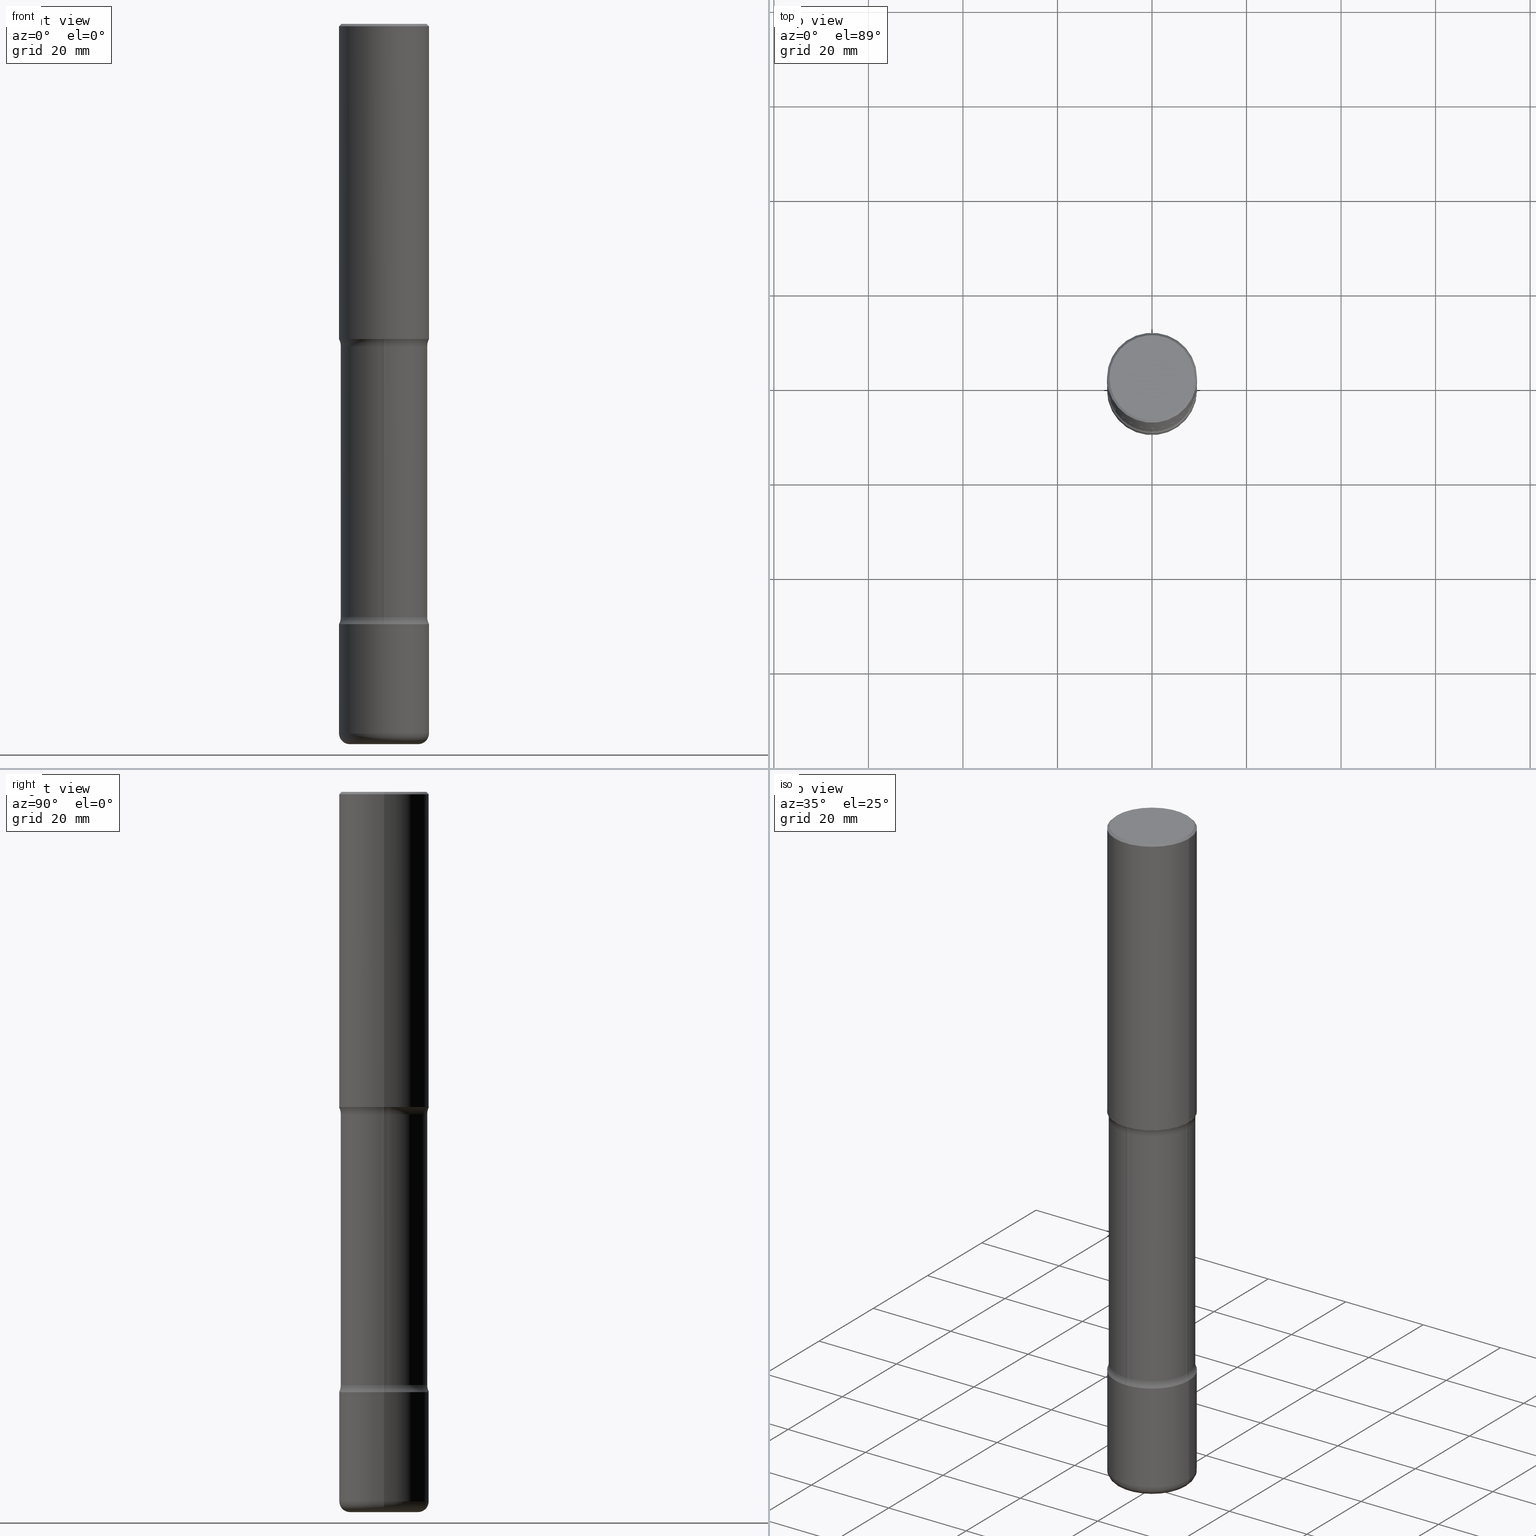
[diagram: canonical four-view strip — front | top / right | iso, engineering-drawing reading convention]
A machine part, canonical four-view strip (front | top / right | iso — engineering-drawing reading convention). The complete STEP part file that produces these views, byte-faithful:
ISO-10303-21;
HEADER;
FILE_DESCRIPTION (( 'STEP AP203' ),
    '1' );
FILE_NAME ('32801.STEP',
    '2023-03-11T07:02:49',
    ( '' ),
    ( '' ),
    'SwSTEP 2.0',
    'SolidWorks 2022',
    '' );
FILE_SCHEMA (( 'CONFIG_CONTROL_DESIGN' ));
ENDSEC;

DATA;
#1 = EDGE_CURVE ( 'NONE', #806, #16, #293, .T. ) ;
#2 = TOROIDAL_SURFACE ( 'NONE', #100, 0.4849999999999996536, 0.1249999999999999306 ) ;
#3 = AXIS2_PLACEMENT_3D ( 'NONE', #291, #470, #667 ) ;
#4 = AXIS2_PLACEMENT_3D ( 'NONE', #106, #223, #517 ) ;
#5 = VERTEX_POINT ( 'NONE', #583 ) ;
#6 = ADVANCED_FACE ( 'NONE', ( #762 ), #165, .F. ) ;
#7 = DIRECTION ( 'NONE',  ( 1.000000000000000000, -6.982962677686265922E-15, 4.876176775795935793E-29 ) ) ;
#8 = EDGE_LOOP ( 'NONE', ( #795, #75, #594, #319 ) ) ;
#9 = CARTESIAN_POINT ( 'NONE',  ( 1.222734403092568523E-28, -1.745740669421572989E-14, -5.000000000000000000 ) ) ;
#10 = ORIENTED_EDGE ( 'NONE', *, *, #383, .F. ) ;
#11 = DIRECTION ( 'NONE',  ( 1.000000000000000000, -6.982962677686265922E-15, 4.876231632511992667E-29 ) ) ;
#12 = TOROIDAL_SURFACE ( 'NONE', #275, 0.2850000000000000311, 0.09000000000000074607 ) ;
#13 = AXIS2_PLACEMENT_3D ( 'NONE', #369, #56, #310 ) ;
#14 = LINE ( 'NONE', #514, #788 ) ;
#15 = AXIS2_PLACEMENT_3D ( 'NONE', #396, #473, #726 ) ;
#16 = VERTEX_POINT ( 'NONE', #161 ) ;
#17 = DIRECTION ( 'NONE',  ( 1.000000000000000000, -6.982962677686265922E-15, 4.876176775795935793E-29 ) ) ;
#18 = MECHANICAL_CONTEXT ( 'NONE', #181, 'mechanical' ) ;
#19 = CARTESIAN_POINT ( 'NONE',  ( 6.564547282075098274E-29, -9.372433733502923486E-15, -2.684371710435190739 ) ) ;
#20 = DIRECTION ( 'NONE',  ( 1.000000000000000000, -6.982962677686265922E-15, 4.876231632511992667E-29 ) ) ;
#21 = VERTEX_POINT ( 'NONE', #417 ) ;
#22 = DIRECTION ( 'NONE',  ( -2.445468806185136597E-29, 3.491481338843145583E-15, 1.000000000000000000 ) ) ;
#23 = DIRECTION ( 'NONE',  ( 7.105427357601001859E-15, 1.000000000000000000, -3.491481338843145583E-15 ) ) ;
#24 = ORIENTED_EDGE ( 'NONE', *, *, #632, .T. ) ;
#25 = DIRECTION ( 'NONE',  ( -2.445468806185136597E-29, 3.491481338843145583E-15, 1.000000000000000000 ) ) ;
#26 = ADVANCED_FACE ( 'NONE', ( #655 ), #468, .F. ) ;
#27 = FACE_OUTER_BOUND ( 'NONE', #257, .T. ) ;
#28 = CALENDAR_DATE ( 2023, 11, 3 ) ;
#29 = CIRCLE ( 'NONE', #244, 0.1250000000000000278 ) ;
#30 = DIRECTION ( 'NONE',  ( 6.982962677686265922E-15, 1.000000000000000000, -2.913971193241880372E-15 ) ) ;
#31 = CIRCLE ( 'NONE', #175, 0.3599999999999997646 ) ;
#32 = ORIENTED_EDGE ( 'NONE', *, *, #668, .F. ) ;
#33 = LOCAL_TIME ( 2, 2, 49.00000000000000000, #154 ) ;
#34 = CARTESIAN_POINT ( 'NONE',  ( 1.445272064455415567E-28, -2.063465471256298944E-14, -5.910000000000000142 ) ) ;
#35 = ADVANCED_FACE ( 'NONE', ( #586 ), #411, .F. ) ;
#36 = DIRECTION ( 'NONE',  ( 1.000000000000000000, -6.982962677686262766E-15, 0.000000000000000000 ) ) ;
#37 = APPROVAL_DATE_TIME ( #159, #93 ) ;
#38 = CARTESIAN_POINT ( 'NONE',  ( 1.222734403092568523E-28, -1.745740669421572989E-14, -5.000000000000000000 ) ) ;
#39 = DIRECTION ( 'NONE',  ( -1.000000000000000000, 6.982962677686265922E-15, 0.000000000000000000 ) ) ;
#40 = CARTESIAN_POINT ( 'NONE',  ( 0.3749999999999996669, -2.642516375941185662E-15, -0.02000000000000008715 ) ) ;
#41 = COORDINATED_UNIVERSAL_TIME_OFFSET ( 5, 0, .BEHIND. ) ;
#42 = CARTESIAN_POINT ( 'NONE',  ( 0.000000000000000000, 0.000000000000000000, 0.000000000000000000 ) ) ;
#43 = CARTESIAN_POINT ( 'NONE',  ( 6.564547282075098274E-29, -9.372433733502923486E-15, -2.684371710435190739 ) ) ;
#44 = DIRECTION ( 'NONE',  ( 1.000000000000000000, -6.982962677686266711E-15, 0.000000000000000000 ) ) ;
#45 = DATE_AND_TIME ( #164, #266 ) ;
#46 = AXIS2_PLACEMENT_3D ( 'NONE', #80, #224, #150 ) ;
#47 = ADVANCED_FACE ( 'NONE', ( #454 ), #686, .F. ) ;
#48 = CIRCLE ( 'NONE', #578, 0.2850000000000000866 ) ;
#49 = VERTEX_POINT ( 'NONE', #708 ) ;
#50 = VECTOR ( 'NONE', #433, 39.37007874015748143 ) ;
#51 = DIRECTION ( 'NONE',  ( 1.000000000000000000, -6.982962677686263555E-15, 0.000000000000000000 ) ) ;
#52 = VECTOR ( 'NONE', #394, 39.37007874015748143 ) ;
#53 = COORDINATED_UNIVERSAL_TIME_OFFSET ( 5, 0, .BEHIND. ) ;
#54 = CARTESIAN_POINT ( 'NONE',  ( -0.3749999999999999445, -1.952948811519683864E-15, -2.625000000000000444 ) ) ;
#55 = ORIENTED_EDGE ( 'NONE', *, *, #193, .T. ) ;
#56 = DIRECTION ( 'NONE',  ( -2.445468806185136597E-29, 3.491481338843145583E-15, 1.000000000000000000 ) ) ;
#57 = DIRECTION ( 'NONE',  ( 1.000000000000000000, 0.000000000000000000, 0.000000000000000000 ) ) ;
#58 = VERTEX_POINT ( 'NONE', #85 ) ;
#59 = FACE_OUTER_BOUND ( 'NONE', #553, .T. ) ;
#60 = EDGE_CURVE ( 'NONE', #233, #639, #692, .T. ) ;
#61 = DIRECTION ( 'NONE',  ( 1.000000000000000000, -6.982962677686269077E-15, 4.883557194083113462E-29 ) ) ;
#62 = ORIENTED_EDGE ( 'NONE', *, *, #508, .F. ) ;
#63 = AXIS2_PLACEMENT_3D ( 'NONE', #661, #339, #407 ) ;
#64 = AXIS2_PLACEMENT_3D ( 'NONE', #600, #284, #772 ) ;
#65 = EDGE_CURVE ( 'NONE', #635, #447, #707, .T. ) ;
#66 = DIRECTION ( 'NONE',  ( -1.000000000000000000, 6.982962677686265922E-15, 0.000000000000000000 ) ) ;
#67 = ORIENTED_EDGE ( 'NONE', *, *, #188, .F. ) ;
#68 = ORIENTED_EDGE ( 'NONE', *, *, #130, .T. ) ;
#69 = EDGE_LOOP ( 'NONE', ( #10, #715, #568, #734 ) ) ;
#70 = PRODUCT_DEFINITION_SHAPE ( 'NONE', 'NONE',  #623 ) ;
#71 = ORIENTED_EDGE ( 'NONE', *, *, #573, .T. ) ;
#72 = ADVANCED_FACE ( 'NONE', ( #478 ), #773, .T. ) ;
#73 = CIRCLE ( 'NONE', #277, 0.1249999999999999584 ) ;
#74 = AXIS2_PLACEMENT_3D ( 'NONE', #643, #581, #17 ) ;
#75 = ORIENTED_EDGE ( 'NONE', *, *, #467, .T. ) ;
#76 = CARTESIAN_POINT ( 'NONE',  ( 1.467281283711082406E-28, -2.094888803305887902E-14, -6.000000000000001776 ) ) ;
#77 = ORIENTED_EDGE ( 'NONE', *, *, #467, .F. ) ;
#78 = EDGE_CURVE ( 'NONE', #802, #425, #398, .T. ) ;
#79 = PLANE ( 'NONE',  #230 ) ;
#80 = CARTESIAN_POINT ( 'NONE',  ( 6.422029023933056992E-29, -9.161310042480134267E-15, -2.625000000000000444 ) ) ;
#81 = CLOSED_SHELL ( 'NONE', ( #72, #340, #47, #603, #800, #520, #625, #263 ) ) ;
#82 = LINE ( 'NONE', #415, #512 ) ;
#83 = AXIS2_PLACEMENT_3D ( 'NONE', #198, #507, #324 ) ;
#84 = DIRECTION ( 'NONE',  ( -2.445468806185136597E-29, 3.491481338843145583E-15, 1.000000000000000000 ) ) ;
#85 = CARTESIAN_POINT ( 'NONE',  ( -2.521233014180972263E-15, -0.3600000000000091460, -2.684371710435189406 ) ) ;
#86 = DIRECTION ( 'NONE',  ( -6.982962677686268288E-15, -1.000000000000000000, 0.000000000000000000 ) ) ;
#87 = CARTESIAN_POINT ( 'NONE',  ( 1.222734403092568523E-28, -1.745740669421572989E-14, -5.000000000000000000 ) ) ;
#88 = EDGE_CURVE ( 'NONE', #447, #635, #306, .T. ) ;
#89 = ORIENTED_EDGE ( 'NONE', *, *, #733, .T. ) ;
#90 = DIRECTION ( 'NONE',  ( 1.000000000000000000, -6.982962677686253300E-15, 0.000000000000000000 ) ) ;
#91 = DIRECTION ( 'NONE',  ( -2.445468806185136597E-29, 3.491481338843145583E-15, 1.000000000000000000 ) ) ;
#92 = CARTESIAN_POINT ( 'NONE',  ( 6.419355616235984688E-29, -9.165138514463258190E-15, -2.625000000000000444 ) ) ;
#93 = APPROVAL ( #599, 'UNSPECIFIED' ) ;
#94 = ORIENTED_EDGE ( 'NONE', *, *, #282, .F. ) ;
#95 = DIRECTION ( 'NONE',  ( -2.445468806185136597E-29, 3.491481338843145583E-15, 1.000000000000000000 ) ) ;
#96 = EDGE_CURVE ( 'NONE', #673, #572, #245, .T. ) ;
#97 = CARTESIAN_POINT ( 'NONE',  ( -1.043851414335219820E-46, 1.490343170380447200E-32, 4.268512490100411279E-18 ) ) ;
#98 = SECURITY_CLASSIFICATION_LEVEL ( 'unclassified' ) ;
#99 = CARTESIAN_POINT ( 'NONE',  ( 0.3549999999999996492, -2.538996582575038287E-15, 4.268512490117958041E-18 ) ) ;
#100 = AXIS2_PLACEMENT_3D ( 'NONE', #336, #531, #218 ) ;
#101 = DIRECTION ( 'NONE',  ( 1.000000000000000000, -6.982962677686266711E-15, 0.000000000000000000 ) ) ;
#102 = LOCAL_TIME ( 2, 2, 49.00000000000000000, #664 ) ;
#103 = ORIENTED_EDGE ( 'NONE', *, *, #685, .F. ) ;
#104 = DIRECTION ( 'NONE',  ( -6.982962677686266711E-15, -1.000000000000000000, 3.491481338843145583E-15 ) ) ;
#105 = DIRECTION ( 'NONE',  ( 2.444343160839000462E-29, -3.493093327046566617E-15, -1.000000000000000000 ) ) ;
#106 = CARTESIAN_POINT ( 'NONE',  ( 6.422029023933056992E-29, -9.161310042480134267E-15, -2.625000000000000444 ) ) ;
#107 = CARTESIAN_POINT ( 'NONE',  ( -0.2850000000000000311, -1.860960791564670606E-14, -5.910000000000000142 ) ) ;
#108 = FACE_OUTER_BOUND ( 'NONE', #260, .T. ) ;
#109 = EDGE_CURVE ( 'NONE', #125, #312, #456, .T. ) ;
#110 = APPLICATION_PROTOCOL_DEFINITION ( 'international standard', 'config_control_design', 1994, #624 ) ;
#111 = ORIENTED_EDGE ( 'NONE', *, *, #258, .T. ) ;
#112 = DIRECTION ( 'NONE',  ( 1.000000000000000000, -6.982962677686266711E-15, 0.000000000000000000 ) ) ;
#113 = DIRECTION ( 'NONE',  ( -0.9993908270190957621, 6.856857904024552526E-15, -0.03489949670250241942 ) ) ;
#114 = DIRECTION ( 'NONE',  ( -0.7071067811865469066, 2.468850131082251144E-15, -0.7071067811865479058 ) ) ;
#115 = CONICAL_SURFACE ( 'NONE', #209, 1127.411546571433973, 1.535889741755008586 ) ;
#116 = ORIENTED_EDGE ( 'NONE', *, *, #301, .T. ) ;
#117 = CIRCLE ( 'NONE', #63, 0.3750000000000000555 ) ;
#118 = AXIS2_PLACEMENT_3D ( 'NONE', #142, #644, #381 ) ;
#119 = CARTESIAN_POINT ( 'NONE',  ( 0.000000000000000000, 0.000000000000000000, 0.000000000000000000 ) ) ;
#120 = EDGE_LOOP ( 'NONE', ( #299, #488 ) ) ;
#121 = ADVANCED_FACE ( 'NONE', ( #273 ), #219, .T. ) ;
#122 = DIRECTION ( 'NONE',  ( 6.982962677686266711E-15, 1.000000000000000000, -3.035386659626961104E-15 ) ) ;
#123 = VERTEX_POINT ( 'NONE', #462 ) ;
#124 = DIRECTION ( 'NONE',  ( 2.444343160839000182E-29, -3.493093327046566617E-15, -1.000000000000000000 ) ) ;
#125 = VERTEX_POINT ( 'NONE', #289 ) ;
#126 =( GEOMETRIC_REPRESENTATION_CONTEXT ( 3 ) GLOBAL_UNCERTAINTY_ASSIGNED_CONTEXT ( ( #614 ) ) GLOBAL_UNIT_ASSIGNED_CONTEXT ( ( #516, #404, #724 ) ) REPRESENTATION_CONTEXT ( 'NONE', 'WORKASPACE' ) );
#127 = ORIENTED_EDGE ( 'NONE', *, *, #632, .F. ) ;
#128 = CYLINDRICAL_SURFACE ( 'NONE', #797, 0.3599999999999999867 ) ;
#129 = MANIFOLD_SOLID_BREP ( 'Body-Move/Copy2[4]', #785 ) ;
#130 = EDGE_CURVE ( 'NONE', #673, #550, #29, .T. ) ;
#131 = MANIFOLD_SOLID_BREP ( 'Body-Move/Copy2[2]', #705 ) ;
#132 = VERTEX_POINT ( 'NONE', #765 ) ;
#133 = CARTESIAN_POINT ( 'NONE',  ( 1.222734403092568523E-28, -1.745740669421572989E-14, -5.000000000000000000 ) ) ;
#134 = ORIENTED_EDGE ( 'NONE', *, *, #173, .T. ) ;
#135 = AXIS2_PLACEMENT_3D ( 'NONE', #588, #25, #51 ) ;
#136 = AXIS2_PLACEMENT_3D ( 'NONE', #281, #272, #86 ) ;
#137 = ORIENTED_EDGE ( 'NONE', *, *, #485, .T. ) ;
#138 = CARTESIAN_POINT ( 'NONE',  ( 6.564547282075098274E-29, -9.372433733502923486E-15, -2.684371710435190739 ) ) ;
#139 = ORIENTED_EDGE ( 'NONE', *, *, #448, .T. ) ;
#140 = ADVANCED_FACE ( 'NONE', ( #213 ), #12, .T. ) ;
#141 = CARTESIAN_POINT ( 'NONE',  ( 1.465056100160528471E-28, -2.092030959830777523E-14, -5.991357109550794036 ) ) ;
#142 = CARTESIAN_POINT ( 'NONE',  ( 1.467281283711082406E-28, -2.094888803305887902E-14, -6.000000000000001776 ) ) ;
#143 = DIRECTION ( 'NONE',  ( -2.445468806185136597E-29, 3.491481338843145583E-15, 1.000000000000000000 ) ) ;
#144 = DIRECTION ( 'NONE',  ( 1.000000000000000000, -6.982962677686267499E-15, 0.000000000000000000 ) ) ;
#145 = CARTESIAN_POINT ( 'NONE',  ( 0.3749999999999998335, -2.618611004132348439E-15, 1.828566290923475082E-29 ) ) ;
#146 = AXIS2_PLACEMENT_3D ( 'NONE', #658, #592, #20 ) ;
#147 = ADVANCED_FACE ( 'NONE', ( #231 ), #755, .F. ) ;
#148 = VECTOR ( 'NONE', #533, 39.37007874015747433 ) ;
#149 = DIRECTION ( 'NONE',  ( 2.444343160839000462E-29, -3.493093327046566617E-15, -1.000000000000000000 ) ) ;
#150 = DIRECTION ( 'NONE',  ( 6.982962677686265922E-15, 1.000000000000000000, -2.913971193241880372E-15 ) ) ;
#151 = ORIENTED_EDGE ( 'NONE', *, *, #329, .T. ) ;
#152 = DIRECTION ( 'NONE',  ( 1.000000000000000000, -6.982962677686261189E-15, 0.000000000000000000 ) ) ;
#153 = CYLINDRICAL_SURFACE ( 'NONE', #212, 0.3599999999999999867 ) ;
#154 = COORDINATED_UNIVERSAL_TIME_OFFSET ( 5, 0, .BEHIND. ) ;
#155 = DIRECTION ( 'NONE',  ( 1.000000000000000000, -6.982962677686265922E-15, 4.876176775795935793E-29 ) ) ;
#156 = ORIENTED_EDGE ( 'NONE', *, *, #200, .T. ) ;
#157 = CARTESIAN_POINT ( 'NONE',  ( 0.4850000000000002087, -2.063684837385390615E-14, -4.940628289564810594 ) ) ;
#158 = CARTESIAN_POINT ( 'NONE',  ( 0.3750000000000000555, -1.178374951859560978E-14, -2.625000000000000444 ) ) ;
#159 = DATE_AND_TIME ( #28, #278 ) ;
#160 = CARTESIAN_POINT ( 'NONE',  ( 2.513866563967119756E-15, 0.3599999999999904388, -2.684371710435191627 ) ) ;
#161 = CARTESIAN_POINT ( 'NONE',  ( 2.618611004132413520E-15, 0.3749999999999908962, -2.625000000000001776 ) ) ;
#162 = CARTESIAN_POINT ( 'NONE',  ( -0.3600000000000002642, -1.474251453077752871E-14, -4.940628289564810594 ) ) ;
#163 = DIRECTION ( 'NONE',  ( -2.445468806185136597E-29, 3.491481338843145583E-15, 1.000000000000000000 ) ) ;
#164 = CALENDAR_DATE ( 2023, 11, 3 ) ;
#165 = CONICAL_SURFACE ( 'NONE', #255, 1127.411546571433973, 1.535889741755008586 ) ;
#166 = FACE_OUTER_BOUND ( 'NONE', #377, .T. ) ;
#167 = CIRCLE ( 'NONE', #265, 0.3750000000000000555 ) ;
#168 = CARTESIAN_POINT ( 'NONE',  ( 6.419355616235984688E-29, -9.165138514463258190E-15, -2.625000000000000444 ) ) ;
#169 = CARTESIAN_POINT ( 'NONE',  ( 1.464493277487460712E-28, -2.092836953932487923E-14, -5.991357109550794036 ) ) ;
#170 = DIRECTION ( 'NONE',  ( 2.444343160839000742E-29, -3.493093327046566223E-15, -1.000000000000000000 ) ) ;
#171 = CARTESIAN_POINT ( 'NONE',  ( 1.222734403092568523E-28, -1.745740669421572989E-14, -5.000000000000000000 ) ) ;
#172 = ORIENTED_EDGE ( 'NONE', *, *, #770, .F. ) ;
#173 = EDGE_CURVE ( 'NONE', #802, #123, #48, .T. ) ;
#174 = ORIENTED_EDGE ( 'NONE', *, *, #448, .F. ) ;
#175 = AXIS2_PLACEMENT_3D ( 'NONE', #138, #703, #144 ) ;
#176 = PRODUCT_RELATED_PRODUCT_CATEGORY ( 'detail', '', ( #744 ) ) ;
#177 = DIRECTION ( 'NONE',  ( -2.445468806185136597E-29, 3.491481338843145583E-15, 1.000000000000000000 ) ) ;
#178 = ORIENTED_EDGE ( 'NONE', *, *, #1, .T. ) ;
#179 = EDGE_CURVE ( 'NONE', #610, #58, #372, .T. ) ;
#180 = CARTESIAN_POINT ( 'NONE',  ( 1.222734403092568523E-28, -1.745740669421572989E-14, -5.000000000000000000 ) ) ;
#181 = APPLICATION_CONTEXT ( 'configuration controlled 3d designs of mechanical parts and assemblies' ) ;
#182 = DIRECTION ( 'NONE',  ( 1.000000000000000000, -6.982962677686269077E-15, 0.000000000000000000 ) ) ;
#183 = CARTESIAN_POINT ( 'NONE',  ( 6.419355616235984688E-29, -9.165138514463258190E-15, -2.625000000000000444 ) ) ;
#184 = ORIENTED_EDGE ( 'NONE', *, *, #743, .F. ) ;
#185 = APPROVAL_DATE_TIME ( #494, #364 ) ;
#186 = ORIENTED_EDGE ( 'NONE', *, *, #282, .T. ) ;
#187 = AXIS2_PLACEMENT_3D ( 'NONE', #793, #170, #292 ) ;
#188 = EDGE_CURVE ( 'NONE', #233, #635, #801, .T. ) ;
#189 = CIRCLE ( 'NONE', #64, 0.1250000000000000278 ) ;
#190 = EDGE_LOOP ( 'NONE', ( #702, #89, #368, #382 ) ) ;
#191 = ORIENTED_EDGE ( 'NONE', *, *, #668, .T. ) ;
#192 = DIRECTION ( 'NONE',  ( 2.438088387897960049E-29, -3.491481338843145188E-15, -1.000000000000000000 ) ) ;
#193 = EDGE_CURVE ( 'NONE', #58, #610, #228, .T. ) ;
#194 = VERTEX_POINT ( 'NONE', #491 ) ;
#195 = AXIS2_PLACEMENT_3D ( 'NONE', #92, #206, #720 ) ;
#196 = AXIS2_PLACEMENT_3D ( 'NONE', #234, #280, #768 ) ;
#197 = LOCAL_TIME ( 2, 2, 49.00000000000000000, #53 ) ;
#198 = CARTESIAN_POINT ( 'NONE',  ( 1.467281283711082406E-28, -2.094888803305887902E-14, -6.000000000000001776 ) ) ;
#199 = VERTEX_POINT ( 'NONE', #54 ) ;
#200 = EDGE_CURVE ( 'NONE', #761, #194, #746, .T. ) ;
#201 = FACE_OUTER_BOUND ( 'NONE', #443, .T. ) ;
#202 = CYLINDRICAL_SURFACE ( 'NONE', #434, 0.3749999999999998335 ) ;
#203 = EDGE_LOOP ( 'NONE', ( #308, #246 ) ) ;
#204 = CARTESIAN_POINT ( 'NONE',  ( 6.419355616235984688E-29, -9.165138514463258190E-15, -2.625000000000000444 ) ) ;
#205 = CYLINDRICAL_SURFACE ( 'NONE', #697, 0.3750000000000000555 ) ;
#206 = DIRECTION ( 'NONE',  ( -2.438088387897960049E-29, 3.491481338843145188E-15, 1.000000000000000000 ) ) ;
#207 = ORIENTED_EDGE ( 'NONE', *, *, #109, .T. ) ;
#208 = CARTESIAN_POINT ( 'NONE',  ( -0.2850000000000000866, -1.844698034480259838E-14, -6.000000000000001776 ) ) ;
#209 = AXIS2_PLACEMENT_3D ( 'NONE', #429, #371, #66 ) ;
#210 = CONICAL_SURFACE ( 'NONE', #3, 0.3749999999999996669, 0.7853981633974476129 ) ;
#211 = CARTESIAN_POINT ( 'NONE',  ( 1.208215236508657052E-28, -1.725011147517606617E-14, -4.940628289564810594 ) ) ;
#212 = AXIS2_PLACEMENT_3D ( 'NONE', #141, #584, #717 ) ;
#213 = FACE_OUTER_BOUND ( 'NONE', #587, .T. ) ;
#214 = ORIENTED_EDGE ( 'NONE', *, *, #781, .F. ) ;
#215 = DIRECTION ( 'NONE',  ( 6.860497997771531562E-15, 1.000000000000000000, 0.000000000000000000 ) ) ;
#216 = PERSON_AND_ORGANIZATION ( #395, #346 ) ;
#217 = CARTESIAN_POINT ( 'NONE',  ( 0.3599999999999997646, -1.188630029746997855E-14, -2.684371710435190739 ) ) ;
#218 = DIRECTION ( 'NONE',  ( 6.982962677686265922E-15, 1.000000000000000000, -3.493093327046566223E-15 ) ) ;
#219 = CYLINDRICAL_SURFACE ( 'NONE', #384, 0.3749999999999998335 ) ;
#220 = DIRECTION ( 'NONE',  ( 6.982962677686265922E-15, 1.000000000000000000, -3.035386659626956765E-15 ) ) ;
#221 =( LENGTH_UNIT ( ) NAMED_UNIT ( * ) SI_UNIT ( $, .METRE. ) );
#222 = PERSON_AND_ORGANIZATION ( #395, #346 ) ;
#223 = DIRECTION ( 'NONE',  ( 2.444343160839000742E-29, -3.493093327046566223E-15, -1.000000000000000000 ) ) ;
#224 = DIRECTION ( 'NONE',  ( 2.444343160839000742E-29, -3.493093327046566223E-15, -1.000000000000000000 ) ) ;
#225 = ADVANCED_FACE ( 'NONE', ( #630 ), #115, .F. ) ;
#226 = CARTESIAN_POINT ( 'NONE',  ( 6.564547282075098274E-29, -9.372433733502923486E-15, -2.684371710435190739 ) ) ;
#227 = APPROVAL_ROLE ( '' ) ;
#228 = CIRCLE ( 'NONE', #294, 0.3599999999999997646 ) ;
#229 = DIRECTION ( 'NONE',  ( -2.445468806185136597E-29, 3.491481338843145583E-15, 1.000000000000000000 ) ) ;
#230 = AXIS2_PLACEMENT_3D ( 'NONE', #133, #192, #376 ) ;
#231 = FACE_OUTER_BOUND ( 'NONE', #492, .T. ) ;
#232 = CC_DESIGN_SECURITY_CLASSIFICATION ( #501, ( #487 ) ) ;
#233 = VERTEX_POINT ( 'NONE', #354 ) ;
#234 = CARTESIAN_POINT ( 'NONE',  ( -0.4850000000000002087, -1.380397920673957957E-14, -4.940628289564810594 ) ) ;
#235 = PERSON_AND_ORGANIZATION_ROLE ( 'creator' ) ;
#236 = DIRECTION ( 'NONE',  ( -1.000000000000000000, 6.982962677686265922E-15, -4.876176775795935793E-29 ) ) ;
#237 = EDGE_LOOP ( 'NONE', ( #575, #111, #633 ) ) ;
#238 = DIRECTION ( 'NONE',  ( 2.444343160839000742E-29, -3.493093327046566223E-15, -1.000000000000000000 ) ) ;
#239 = ADVANCED_FACE ( 'NONE', ( #609 ), #2, .F. ) ;
#240 = ORIENTED_EDGE ( 'NONE', *, *, #258, .F. ) ;
#241 = DIRECTION ( 'NONE',  ( 1.000000000000000000, -6.982962677686266711E-15, 0.000000000000000000 ) ) ;
#242 = ORIENTED_EDGE ( 'NONE', *, *, #370, .T. ) ;
#243 = ADVANCED_FACE ( 'NONE', ( #546 ), #709, .F. ) ;
#244 = AXIS2_PLACEMENT_3D ( 'NONE', #518, #540, #397 ) ;
#245 = CIRCLE ( 'NONE', #509, 0.3750000000000000555 ) ;
#246 = ORIENTED_EDGE ( 'NONE', *, *, #698, .T. ) ;
#247 = CIRCLE ( 'NONE', #766, 0.1249999999999999029 ) ;
#248 = AXIS2_PLACEMENT_3D ( 'NONE', #19, #269, #466 ) ;
#249 = CARTESIAN_POINT ( 'NONE',  ( 6.567153858282626982E-29, -9.368700968016638800E-15, -2.684371710435190739 ) ) ;
#250 = EDGE_LOOP ( 'NONE', ( #268, #679, #742, #751 ) ) ;
#251 = CARTESIAN_POINT ( 'NONE',  ( 0.3599999999999999867, -1.167900507843031484E-14, -2.625000000000000444 ) ) ;
#252 = ORIENTED_EDGE ( 'NONE', *, *, #577, .F. ) ;
#253 = CARTESIAN_POINT ( 'NONE',  ( 6.419355616235984688E-29, -9.165138514463258190E-15, -2.625000000000000444 ) ) ;
#254 = EDGE_LOOP ( 'NONE', ( #240, #547, #103 ) ) ;
#255 = AXIS2_PLACEMENT_3D ( 'NONE', #405, #601, #39 ) ;
#256 = VECTOR ( 'NONE', #149, 39.37007874015748143 ) ;
#257 = EDGE_LOOP ( 'NONE', ( #172, #618, #315, #500 ) ) ;
#258 = EDGE_CURVE ( 'NONE', #359, #5, #543, .T. ) ;
#259 = FACE_OUTER_BOUND ( 'NONE', #69, .T. ) ;
#260 = EDGE_LOOP ( 'NONE', ( #426, #659, #626, #174 ) ) ;
#261 = CC_DESIGN_PERSON_AND_ORGANIZATION_ASSIGNMENT ( #216, #465, ( #487 ) ) ;
#262 = PLANE ( 'NONE',  #83 ) ;
#263 = ADVANCED_FACE ( 'NONE', ( #27 ), #128, .T. ) ;
#264 = ORIENTED_EDGE ( 'NONE', *, *, #379, .T. ) ;
#265 = AXIS2_PLACEMENT_3D ( 'NONE', #180, #238, #674 ) ;
#266 = LOCAL_TIME ( 2, 2, 49.00000000000000000, #287 ) ;
#267 = FACE_OUTER_BOUND ( 'NONE', #774, .T. ) ;
#268 = ORIENTED_EDGE ( 'NONE', *, *, #301, .F. ) ;
#269 = DIRECTION ( 'NONE',  ( -2.445468806185136597E-29, 3.491481338843145583E-15, 1.000000000000000000 ) ) ;
#270 = CARTESIAN_POINT ( 'NONE',  ( 4.890937612370294178E-31, -6.982962677686321191E-17, -0.02000000000000008715 ) ) ;
#271 = EDGE_CURVE ( 'NONE', #484, #641, #373, .T. ) ;
#272 = DIRECTION ( 'NONE',  ( -1.000000000000000000, 6.982962677686265922E-15, -4.883557194083112340E-29 ) ) ;
#273 = FACE_OUTER_BOUND ( 'NONE', #8, .T. ) ;
#274 = CARTESIAN_POINT ( 'NONE',  ( 0.2474999999999992761, -2.264686128750732765E-14, -6.000000000000001776 ) ) ;
#275 = AXIS2_PLACEMENT_3D ( 'NONE', #714, #305, #61 ) ;
#276 = CALENDAR_DATE ( 2023, 11, 3 ) ;
#277 = AXIS2_PLACEMENT_3D ( 'NONE', #157, #313, #489 ) ;
#278 = LOCAL_TIME ( 2, 2, 49.00000000000000000, #41 ) ;
#279 = CARTESIAN_POINT ( 'NONE',  ( 1.222734403092568523E-28, -1.745740669421572989E-14, -5.000000000000000000 ) ) ;
#280 = DIRECTION ( 'NONE',  ( 7.105427357601001859E-15, 1.000000000000000000, -3.491481338843145583E-15 ) ) ;
#281 = CARTESIAN_POINT ( 'NONE',  ( 3.386736898677901911E-15, 0.4849999999999903277, -2.684371710435192515 ) ) ;
#282 = EDGE_CURVE ( 'NONE', #641, #484, #31, .T. ) ;
#283 = DATE_AND_TIME ( #409, #102 ) ;
#284 = DIRECTION ( 'NONE',  ( 1.000000000000000000, -6.860497997771530774E-15, 4.840779138462207256E-29 ) ) ;
#285 = DIRECTION ( 'NONE',  ( -2.445468806185136597E-29, 3.491481338843145583E-15, 1.000000000000000000 ) ) ;
#286 = DIRECTION ( 'NONE',  ( 0.7071067811865469066, -7.319954787623252890E-15, -0.7071067811865479058 ) ) ;
#287 = COORDINATED_UNIVERSAL_TIME_OFFSET ( 5, 0, .BEHIND. ) ;
#288 = DIRECTION ( 'NONE',  ( 1.000000000000000000, -6.982962677686265922E-15, 4.876176775795935793E-29 ) ) ;
#289 = CARTESIAN_POINT ( 'NONE',  ( 0.3750000000000001110, -2.007601769834807675E-14, -5.000000000000000000 ) ) ;
#290 = EDGE_CURVE ( 'NONE', #359, #374, #480, .T. ) ;
#291 = CARTESIAN_POINT ( 'NONE',  ( 4.890937612370294178E-31, -6.982962677686321191E-17, -0.02000000000000008715 ) ) ;
#292 = DIRECTION ( 'NONE',  ( 6.982962677686265922E-15, 1.000000000000000000, -3.493093327046566223E-15 ) ) ;
#293 = CIRCLE ( 'NONE', #46, 0.3750000000000000555 ) ;
#294 = AXIS2_PLACEMENT_3D ( 'NONE', #249, #683, #617 ) ;
#295 = AXIS2_PLACEMENT_3D ( 'NONE', #760, #390, #753 ) ;
#296 = AXIS2_PLACEMENT_3D ( 'NONE', #42, #706, #288 ) ;
#297 = ORIENTED_EDGE ( 'NONE', *, *, #379, .F. ) ;
#298 = CALENDAR_DATE ( 2023, 11, 3 ) ;
#299 = ORIENTED_EDGE ( 'NONE', *, *, #685, .T. ) ;
#300 = CARTESIAN_POINT ( 'NONE',  ( 0.3750000000000000555, -1.178374951859560978E-14, -2.625000000000000444 ) ) ;
#301 = EDGE_CURVE ( 'NONE', #194, #761, #526, .T. ) ;
#302 = DIRECTION ( 'NONE',  ( 1.000000000000000000, -6.982962677686258822E-15, 0.000000000000000000 ) ) ;
#303 = ORIENTED_EDGE ( 'NONE', *, *, #577, .T. ) ;
#304 = ORIENTED_EDGE ( 'NONE', *, *, #88, .T. ) ;
#305 = DIRECTION ( 'NONE',  ( -2.445468806185136597E-29, 3.491481338843145583E-15, 1.000000000000000000 ) ) ;
#306 = CIRCLE ( 'NONE', #593, 0.3749999999999996669 ) ;
#307 = AXIS2_PLACEMENT_3D ( 'NONE', #34, #602, #152 ) ;
#308 = ORIENTED_EDGE ( 'NONE', *, *, #60, .T. ) ;
#309 = TOROIDAL_SURFACE ( 'NONE', #248, 0.4849999999999996536, 0.1249999999999999306 ) ;
#310 = DIRECTION ( 'NONE',  ( 1.000000000000000000, -6.982962677686261189E-15, 0.000000000000000000 ) ) ;
#311 = ADVANCED_FACE ( 'NONE', ( #657 ), #210, .T. ) ;
#312 = VERTEX_POINT ( 'NONE', #711 ) ;
#313 = DIRECTION ( 'NONE',  ( -6.982962677686266711E-15, -1.000000000000000000, 3.491481338843145583E-15 ) ) ;
#314 = VERTEX_POINT ( 'NONE', #349 ) ;
#315 = ORIENTED_EDGE ( 'NONE', *, *, #527, .T. ) ;
#316 = EDGE_CURVE ( 'NONE', #550, #637, #317, .T. ) ;
#317 = CIRCLE ( 'NONE', #693, 0.3600000000000002642 ) ;
#318 = AXIS2_PLACEMENT_3D ( 'NONE', #665, #84, #401 ) ;
#319 = ORIENTED_EDGE ( 'NONE', *, *, #65, .F. ) ;
#320 = CC_DESIGN_DATE_AND_TIME_ASSIGNMENT ( #529, #353, ( #623 ) ) ;
#321 = EDGE_CURVE ( 'NONE', #338, #21, #343, .T. ) ;
#322 = DIRECTION ( 'NONE',  ( -2.445468806185136597E-29, 3.491481338843145583E-15, 1.000000000000000000 ) ) ;
#323 = ORIENTED_EDGE ( 'NONE', *, *, #527, .F. ) ;
#324 = DIRECTION ( 'NONE',  ( 1.000000000000000000, -6.982962677686265922E-15, 4.876176775795935793E-29 ) ) ;
#325 = ORIENTED_EDGE ( 'NONE', *, *, #179, .T. ) ;
#326 = AXIS2_PLACEMENT_3D ( 'NONE', #279, #532, #780 ) ;
#327 = AXIS2_PLACEMENT_3D ( 'NONE', #551, #366, #241 ) ;
#328 = DIRECTION ( 'NONE',  ( -1.000000000000000000, 7.105427357600998703E-15, 0.000000000000000000 ) ) ;
#329 = EDGE_CURVE ( 'NONE', #123, #314, #444, .T. ) ;
#330 = DIRECTION ( 'NONE',  ( 1.000000000000000000, -6.982962677686266711E-15, 0.000000000000000000 ) ) ;
#331 = DIRECTION ( 'NONE',  ( 1.000000000000000000, -6.982962677686266711E-15, 0.000000000000000000 ) ) ;
#332 = DIRECTION ( 'NONE',  ( 2.438088387897960049E-29, -3.491481338843145188E-15, -1.000000000000000000 ) ) ;
#333 = EDGE_LOOP ( 'NONE', ( #184, #681, #242, #186 ) ) ;
#334 = CARTESIAN_POINT ( 'NONE',  ( 9.657996983223458904E-18, -2.091871154234180537E-14, -5.991357109550794036 ) ) ;
#335 = PLANE ( 'NONE',  #74 ) ;
#336 = CARTESIAN_POINT ( 'NONE',  ( 6.564547282075098274E-29, -9.372433733502923486E-15, -2.684371710435190739 ) ) ;
#337 = DIRECTION ( 'NONE',  ( 1.000000000000000000, -6.982962677686269077E-15, 0.000000000000000000 ) ) ;
#338 = VERTEX_POINT ( 'NONE', #162 ) ;
#339 = DIRECTION ( 'NONE',  ( -2.445468806185136597E-29, 3.491481338843145583E-15, 1.000000000000000000 ) ) ;
#340 = ADVANCED_FACE ( 'NONE', ( #108 ), #499, .F. ) ;
#341 = AXIS2_PLACEMENT_3D ( 'NONE', #168, #285, #337 ) ;
#342 = CARTESIAN_POINT ( 'NONE',  ( 1.467281283711082406E-28, -2.094888803305887902E-14, -6.000000000000001776 ) ) ;
#343 = CIRCLE ( 'NONE', #135, 0.3600000000000002642 ) ;
#344 = AXIS2_PLACEMENT_3D ( 'NONE', #729, #356, #464 ) ;
#345 = CARTESIAN_POINT ( 'NONE',  ( -2.521233014180918226E-15, -0.3600000000000175282, -4.940628289564809705 ) ) ;
#346 = ORGANIZATION ( 'UNSPECIFIED', 'UNSPECIFIED', '' ) ;
#347 = DIRECTION ( 'NONE',  ( -2.445468806185136597E-29, 3.491481338843145583E-15, 1.000000000000000000 ) ) ;
#348 = ORIENTED_EDGE ( 'NONE', *, *, #721, .F. ) ;
#349 = CARTESIAN_POINT ( 'NONE',  ( 0.3750000000000003886, -2.325326571669533946E-14, -5.910000000000000142 ) ) ;
#350 = CARTESIAN_POINT ( 'NONE',  ( 1.208215236508657052E-28, -1.725011147517606617E-14, -4.940628289564810594 ) ) ;
#351 = DIRECTION ( 'NONE',  ( 1.000000000000000000, -6.982962677686266711E-15, 4.883557194083112901E-29 ) ) ;
#352 = PLANE ( 'NONE',  #638 ) ;
#353 = DATE_TIME_ROLE ( 'creation_date' ) ;
#354 = CARTESIAN_POINT ( 'NONE',  ( -0.3549999999999996492, 2.513866563967053097E-15, 4.268512490082953109E-18 ) ) ;
#355 = FACE_OUTER_BOUND ( 'NONE', #190, .T. ) ;
#356 = DIRECTION ( 'NONE',  ( -6.982962677686266711E-15, -1.000000000000000000, 3.491481338843145583E-15 ) ) ;
#357 = AXIS2_PLACEMENT_3D ( 'NONE', #474, #104, #90 ) ;
#358 = TOROIDAL_SURFACE ( 'NONE', #616, 0.4850000000000002087, 0.1250000000000000000 ) ;
#359 = VERTEX_POINT ( 'NONE', #169 ) ;
#360 = EDGE_CURVE ( 'NONE', #519, #199, #117, .T. ) ;
#361 = FACE_OUTER_BOUND ( 'NONE', #738, .T. ) ;
#362 = DIRECTION ( 'NONE',  ( 0.000000000000000000, 0.000000000000000000, 1.000000000000000000 ) ) ;
#363 = DESIGN_CONTEXT ( 'detailed design', #624, 'design' ) ;
#364 = APPROVAL ( #725, 'UNSPECIFIED' ) ;
#365 = ORIENTED_EDGE ( 'NONE', *, *, #439, .F. ) ;
#366 = DIRECTION ( 'NONE',  ( -2.445468806185136597E-29, 3.491481338843145583E-15, 1.000000000000000000 ) ) ;
#367 = ORIENTED_EDGE ( 'NONE', *, *, #316, .F. ) ;
#368 = ORIENTED_EDGE ( 'NONE', *, *, #88, .F. ) ;
#369 = CARTESIAN_POINT ( 'NONE',  ( 1.445272064455415567E-28, -2.063465471256298944E-14, -5.910000000000000142 ) ) ;
#370 = EDGE_CURVE ( 'NONE', #761, #641, #596, .T. ) ;
#371 = DIRECTION ( 'NONE',  ( 2.445468806185136597E-29, -3.491481338843145583E-15, -1.000000000000000000 ) ) ;
#372 = CIRCLE ( 'NONE', #475, 0.3599999999999997646 ) ;
#373 = CIRCLE ( 'NONE', #385, 0.3599999999999997646 ) ;
#374 = VERTEX_POINT ( 'NONE', #274 ) ;
#375 = CC_DESIGN_APPROVAL ( #556, ( #487 ) ) ;
#376 = DIRECTION ( 'NONE',  ( -1.000000000000000000, 6.982962677686265922E-15, -4.876176775795935793E-29 ) ) ;
#377 = EDGE_LOOP ( 'NONE', ( #642, #732, #297, #758 ) ) ;
#378 = DIRECTION ( 'NONE',  ( 1.000000000000000000, -6.982962677686266711E-15, 0.000000000000000000 ) ) ;
#379 = EDGE_CURVE ( 'NONE', #314, #425, #511, .T. ) ;
#380 = EDGE_LOOP ( 'NONE', ( #794, #688, #178, #214 ) ) ;
#381 = DIRECTION ( 'NONE',  ( 1.000000000000000000, -6.982962677686262766E-15, 0.000000000000000000 ) ) ;
#382 = ORIENTED_EDGE ( 'NONE', *, *, #779, .F. ) ;
#383 = EDGE_CURVE ( 'NONE', #639, #447, #789, .T. ) ;
#384 = AXIS2_PLACEMENT_3D ( 'NONE', #605, #523, #155 ) ;
#385 = AXIS2_PLACEMENT_3D ( 'NONE', #570, #451, #506 ) ;
#386 = CC_DESIGN_APPROVAL ( #93, ( #623 ) ) ;
#387 = ORIENTED_EDGE ( 'NONE', *, *, #721, .T. ) ;
#388 = DIRECTION ( 'NONE',  ( 2.438088387897960049E-29, -3.491481338843145188E-15, -1.000000000000000000 ) ) ;
#389 = DIRECTION ( 'NONE',  ( -2.445468806185136597E-29, 3.491481338843145583E-15, 1.000000000000000000 ) ) ;
#390 = DIRECTION ( 'NONE',  ( 2.445468806185136597E-29, -3.491481338843145583E-15, -1.000000000000000000 ) ) ;
#391 = EDGE_LOOP ( 'NONE', ( #482, #564, #438, #579 ) ) ;
#392 = MANIFOLD_SOLID_BREP ( 'Body-Move/Copy2[1]', #432 ) ;
#393 = MANIFOLD_SOLID_BREP ( 'Body-Move/Copy2[3]', #81 ) ;
#394 = DIRECTION ( 'NONE',  ( -2.445468806185136877E-29, 3.491481338843145188E-15, 1.000000000000000000 ) ) ;
#395 = PERSON ( 'UNSPECIFIED', 'UNSPECIFIED', 'UNSPECIFIED', ('UNSPECIFIED'), ('UNSPECIFIED'), ('UNSPECIFIED') ) ;
#396 = CARTESIAN_POINT ( 'NONE',  ( 1.208221919657611412E-28, -1.725001576867922693E-14, -4.940628289564810594 ) ) ;
#397 = DIRECTION ( 'NONE',  ( -6.982962677686265133E-15, -1.000000000000000000, 0.000000000000000000 ) ) ;
#398 = CIRCLE ( 'NONE', #796, 0.09000000000000074607 ) ;
#399 = VECTOR ( 'NONE', #286, 39.37007874015748854 ) ;
#400 = AXIS2_PLACEMENT_3D ( 'NONE', #342, #22, #36 ) ;
#401 = DIRECTION ( 'NONE',  ( 1.000000000000000000, -6.982962677686269077E-15, 4.883557194083113462E-29 ) ) ;
#402 = CARTESIAN_POINT ( 'NONE',  ( 4.890937612370294178E-31, -6.982962677686321191E-17, -0.02000000000000008715 ) ) ;
#403 = DIRECTION ( 'NONE',  ( -2.445468806185136597E-29, 3.491481338843145583E-15, 1.000000000000000000 ) ) ;
#404 =( NAMED_UNIT ( * ) PLANE_ANGLE_UNIT ( ) SI_UNIT ( $, .RADIAN. ) );
#405 = CARTESIAN_POINT ( 'NONE',  ( 1.109299763742297518E-27, -1.583786067723869033E-13, -45.36143584970827902 ) ) ;
#406 = EDGE_CURVE ( 'NONE', #338, #312, #458, .T. ) ;
#407 = DIRECTION ( 'NONE',  ( 1.000000000000000000, -6.982962677686266711E-15, 0.000000000000000000 ) ) ;
#408 = CARTESIAN_POINT ( 'NONE',  ( -0.3599999999999999867, -6.607184665726898404E-15, -2.625000000000000444 ) ) ;
#409 = CALENDAR_DATE ( 2023, 11, 3 ) ;
#410 = FACE_OUTER_BOUND ( 'NONE', #455, .T. ) ;
#411 = PLANE ( 'NONE',  #195 ) ;
#412 = CC_DESIGN_PERSON_AND_ORGANIZATION_ASSIGNMENT ( #545, #235, ( #487 ) ) ;
#413 = ORIENTED_EDGE ( 'NONE', *, *, #696, .T. ) ;
#414 = ADVANCED_FACE ( 'NONE', ( #418 ), #352, .F. ) ;
#415 = CARTESIAN_POINT ( 'NONE',  ( 0.3750000000000000555, -2.618611004132350016E-15, 1.828566290923476203E-29 ) ) ;
#416 = AXIS2_PLACEMENT_3D ( 'NONE', #350, #539, #701 ) ;
#417 = CARTESIAN_POINT ( 'NONE',  ( 0.3600000000000002642, -1.976397803914312281E-14, -4.940628289564810594 ) ) ;
#418 = FACE_OUTER_BOUND ( 'NONE', #463, .T. ) ;
#419 = CARTESIAN_POINT ( 'NONE',  ( -0.3749999999999996669, 2.548781377355484352E-15, -0.02000000000000008715 ) ) ;
#420 = CARTESIAN_POINT ( 'NONE',  ( -0.3750000000000003886, -1.797011945346261375E-14, -5.910000000000000142 ) ) ;
#421 = CARTESIAN_POINT ( 'NONE',  ( -9.657996982930426351E-18, -2.091871154234180537E-14, -5.991357109550794036 ) ) ;
#422 = ORIENTED_EDGE ( 'NONE', *, *, #78, .F. ) ;
#423 = AXIS2_PLACEMENT_3D ( 'NONE', #226, #548, #792 ) ;
#424 = AXIS2_PLACEMENT_3D ( 'NONE', #76, #389, #495 ) ;
#425 = VERTEX_POINT ( 'NONE', #420 ) ;
#426 = ORIENTED_EDGE ( 'NONE', *, *, #321, .F. ) ;
#427 = EDGE_CURVE ( 'NONE', #132, #49, #567, .T. ) ;
#428 = PLANE ( 'NONE',  #728 ) ;
#429 = CARTESIAN_POINT ( 'NONE',  ( 1.109299763742297518E-27, -1.583786067723869033E-13, -45.36143584970827902 ) ) ;
#430 = EDGE_LOOP ( 'NONE', ( #695, #435 ) ) ;
#431 = ADVANCED_FACE ( 'NONE', ( #611 ), #660, .F. ) ;
#432 = CLOSED_SHELL ( 'NONE', ( #6, #619, #678, #565, #140, #650, #558, #225 ) ) ;
#433 = DIRECTION ( 'NONE',  ( -2.445468806185136877E-29, 3.491481338843145188E-15, 1.000000000000000000 ) ) ;
#434 = AXIS2_PLACEMENT_3D ( 'NONE', #571, #322, #7 ) ;
#435 = ORIENTED_EDGE ( 'NONE', *, *, #173, .F. ) ;
#436 = CIRCLE ( 'NONE', #15, 0.3600000000000002642 ) ;
#437 = DIRECTION ( 'NONE',  ( -2.445468806185136597E-29, 3.491481338843145583E-15, 1.000000000000000000 ) ) ;
#438 = ORIENTED_EDGE ( 'NONE', *, *, #672, .T. ) ;
#439 = EDGE_CURVE ( 'NONE', #58, #806, #247, .T. ) ;
#440 = ORIENTED_EDGE ( 'NONE', *, *, #672, .F. ) ;
#441 = FACE_BOUND ( 'NONE', #120, .T. ) ;
#442 = AXIS2_PLACEMENT_3D ( 'NONE', #43, #727, #351 ) ;
#443 = EDGE_LOOP ( 'NONE', ( #156, #116 ) ) ;
#444 = CIRCLE ( 'NONE', #357, 0.09000000000000074607 ) ;
#445 = APPROVAL_PERSON_ORGANIZATION ( #222, #93, #522 ) ;
#446 = AXIS2_PLACEMENT_3D ( 'NONE', #97, #163, #11 ) ;
#447 = VERTEX_POINT ( 'NONE', #716 ) ;
#448 = EDGE_CURVE ( 'NONE', #21, #125, #73, .T. ) ;
#449 = LINE ( 'NONE', #700, #767 ) ;
#450 = ORIENTED_EDGE ( 'NONE', *, *, #427, .T. ) ;
#451 = DIRECTION ( 'NONE',  ( -2.445468806185136597E-29, 3.491481338843145583E-15, 1.000000000000000000 ) ) ;
#452 = FACE_OUTER_BOUND ( 'NONE', #622, .T. ) ;
#453 = CARTESIAN_POINT ( 'NONE',  ( 2.618611004132472684E-15, 0.3749999999999826250, -5.000000000000002665 ) ) ;
#454 = FACE_OUTER_BOUND ( 'NONE', #250, .T. ) ;
#455 = EDGE_LOOP ( 'NONE', ( #682, #691, #387, #252 ) ) ;
#456 = CIRCLE ( 'NONE', #326, 0.3750000000000000555 ) ;
#457 = CARTESIAN_POINT ( 'NONE',  ( -3.327341528919124745E-15, -0.4850000000000090350, -2.684371710435188962 ) ) ;
#458 = CIRCLE ( 'NONE', #196, 0.1249999999999999584 ) ;
#459 = CIRCLE ( 'NONE', #118, 0.2475000000000000533 ) ;
#460 = EDGE_CURVE ( 'NONE', #312, #125, #736, .T. ) ;
#461 = DIRECTION ( 'NONE',  ( 1.000000000000000000, -6.982962677686263555E-15, 4.883557194083111780E-29 ) ) ;
#462 = CARTESIAN_POINT ( 'NONE',  ( 0.2850000000000000866, -2.293903239619946251E-14, -6.000000000000001776 ) ) ;
#463 = EDGE_LOOP ( 'NONE', ( #469, #137 ) ) ;
#464 = DIRECTION ( 'NONE',  ( 1.000000000000000000, -6.982962677686265133E-15, 0.000000000000000000 ) ) ;
#465 = PERSON_AND_ORGANIZATION_ROLE ( 'design_supplier' ) ;
#466 = DIRECTION ( 'NONE',  ( 1.000000000000000000, -6.982962677686266711E-15, 4.883557194083112901E-29 ) ) ;
#467 = EDGE_CURVE ( 'NONE', #199, #519, #694, .T. ) ;
#468 = PLANE ( 'NONE',  #566 ) ;
#469 = ORIENTED_EDGE ( 'NONE', *, *, #96, .T. ) ;
#470 = DIRECTION ( 'NONE',  ( 2.445468806185136597E-29, -3.491481338843145583E-15, -1.000000000000000000 ) ) ;
#471 = LENGTH_MEASURE_WITH_UNIT ( LENGTH_MEASURE( 0.02539999999999999897 ), #221 );
#472 = PERSON_AND_ORGANIZATION ( #395, #346 ) ;
#473 = DIRECTION ( 'NONE',  ( 2.444343160839000742E-29, -3.493093327046566223E-15, -1.000000000000000000 ) ) ;
#474 = CARTESIAN_POINT ( 'NONE',  ( 0.2850000000000000311, -2.262479907570357609E-14, -5.910000000000000142 ) ) ;
#475 = AXIS2_PLACEMENT_3D ( 'NONE', #560, #731, #122 ) ;
#476 = AXIS2_PLACEMENT_3D ( 'NONE', #9, #388, #236 ) ;
#477 = VECTOR ( 'NONE', #521, 39.37007874015748143 ) ;
#478 = FACE_OUTER_BOUND ( 'NONE', #763, .T. ) ;
#479 = ORIENTED_EDGE ( 'NONE', *, *, #680, .F. ) ;
#480 = LINE ( 'NONE', #334, #148 ) ;
#481 = ADVANCED_FACE ( 'NONE', ( #59 ), #735, .T. ) ;
#482 = ORIENTED_EDGE ( 'NONE', *, *, #485, .F. ) ;
#483 = DIRECTION ( 'NONE',  ( 1.000000000000000000, -6.982962677686266711E-15, 0.000000000000000000 ) ) ;
#484 = VERTEX_POINT ( 'NONE', #554 ) ;
#485 = EDGE_CURVE ( 'NONE', #572, #673, #167, .T. ) ;
#486 = AXIS2_PLACEMENT_3D ( 'NONE', #607, #403, #44 ) ;
#487 = PRODUCT_DEFINITION_FORMATION_WITH_SPECIFIED_SOURCE ( 'ANY', '', #744, .NOT_KNOWN. ) ;
#488 = ORIENTED_EDGE ( 'NONE', *, *, #704, .T. ) ;
#489 = DIRECTION ( 'NONE',  ( 1.000000000000000000, -6.982962677686265133E-15, 0.000000000000000000 ) ) ;
#490 = CC_DESIGN_DATE_AND_TIME_ASSIGNMENT ( #283, #534, ( #501 ) ) ;
#491 = CARTESIAN_POINT ( 'NONE',  ( -0.3750000000000000555, -6.500603255362883282E-15, -2.625000000000000444 ) ) ;
#492 = EDGE_LOOP ( 'NONE', ( #562, #754, #68, #515 ) ) ;
#493 = FACE_OUTER_BOUND ( 'NONE', #699, .T. ) ;
#494 = DATE_AND_TIME ( #298, #197 ) ;
#495 = DIRECTION ( 'NONE',  ( 1.000000000000000000, -6.982962677686258822E-15, 0.000000000000000000 ) ) ;
#496 = EDGE_LOOP ( 'NONE', ( #722, #745, #304, #67 ) ) ;
#497 = DIRECTION ( 'NONE',  ( 2.444343160839000742E-29, -3.493093327046566223E-15, -1.000000000000000000 ) ) ;
#498 = VECTOR ( 'NONE', #114, 39.37007874015748854 ) ;
#499 = TOROIDAL_SURFACE ( 'NONE', #557, 0.4850000000000002087, 0.1250000000000000000 ) ;
#500 = ORIENTED_EDGE ( 'NONE', *, *, #271, .F. ) ;
#501 = SECURITY_CLASSIFICATION ( '', '', #98 ) ;
#502 = ADVANCED_FACE ( 'NONE', ( #361 ), #428, .F. ) ;
#503 = EDGE_LOOP ( 'NONE', ( #365, #684, #787, #191 ) ) ;
#504 = PLANE ( 'NONE',  #476 ) ;
#505 = EDGE_LOOP ( 'NONE', ( #264, #71, #689, #348 ) ) ;
#506 = DIRECTION ( 'NONE',  ( 1.000000000000000000, -6.982962677686267499E-15, 0.000000000000000000 ) ) ;
#507 = DIRECTION ( 'NONE',  ( -2.438088387897960049E-29, 3.491481338843145188E-15, 1.000000000000000000 ) ) ;
#508 = EDGE_CURVE ( 'NONE', #425, #314, #747, .T. ) ;
#509 = AXIS2_PLACEMENT_3D ( 'NONE', #87, #536, #30 ) ;
#510 = EDGE_LOOP ( 'NONE', ( #791, #77 ) ) ;
#511 = CIRCLE ( 'NONE', #307, 0.3750000000000000555 ) ;
#512 = VECTOR ( 'NONE', #513, 39.37007874015748143 ) ;
#513 = DIRECTION ( 'NONE',  ( -2.445468806185136877E-29, 3.491481338843145188E-15, 1.000000000000000000 ) ) ;
#514 = CARTESIAN_POINT ( 'NONE',  ( -0.3750000000000000555, 2.664535259100376091E-15, -1.844600658845589598E-29 ) ) ;
#515 = ORIENTED_EDGE ( 'NONE', *, *, #316, .T. ) ;
#516 =( CONVERSION_BASED_UNIT ( 'INCH', #471 ) LENGTH_UNIT ( ) NAMED_UNIT ( #636 ) );
#517 = DIRECTION ( 'NONE',  ( 6.982962677686265922E-15, 1.000000000000000000, -2.913971193241880372E-15 ) ) ;
#518 = CARTESIAN_POINT ( 'NONE',  ( 3.386736898677961076E-15, 0.4849999999999829448, -4.940628289564813258 ) ) ;
#519 = VERTEX_POINT ( 'NONE', #300 ) ;
#520 = ADVANCED_FACE ( 'NONE', ( #493 ), #504, .T. ) ;
#521 = DIRECTION ( 'NONE',  ( -2.445468806185136877E-29, 3.491481338843145188E-15, 1.000000000000000000 ) ) ;
#522 = APPROVAL_ROLE ( '' ) ;
#523 = DIRECTION ( 'NONE',  ( -2.445468806185136597E-29, 3.491481338843145583E-15, 1.000000000000000000 ) ) ;
#524 = ORIENTED_EDGE ( 'NONE', *, *, #1, .F. ) ;
#525 = DIRECTION ( 'NONE',  ( 1.000000000000000000, -6.982962677686263555E-15, 4.883557194083111780E-29 ) ) ;
#526 = CIRCLE ( 'NONE', #486, 0.3750000000000000555 ) ;
#527 = EDGE_CURVE ( 'NONE', #21, #641, #804, .T. ) ;
#528 = CC_DESIGN_PERSON_AND_ORGANIZATION_ASSIGNMENT ( #718, #783, ( #501 ) ) ;
#529 = DATE_AND_TIME ( #276, #33 ) ;
#530 = CARTESIAN_POINT ( 'NONE',  ( -0.3749999999999996669, 2.548781377355484352E-15, -0.02000000000000008715 ) ) ;
#531 = DIRECTION ( 'NONE',  ( 2.444343160839000742E-29, -3.493093327046566223E-15, -1.000000000000000000 ) ) ;
#532 = DIRECTION ( 'NONE',  ( -2.445468806185136597E-29, 3.491481338843145583E-15, 1.000000000000000000 ) ) ;
#533 = DIRECTION ( 'NONE',  ( 0.9993908270190957621, -6.978169709227547799E-15, -0.03489949670250241942 ) ) ;
#534 = DATE_TIME_ROLE ( 'classification_date' ) ;
#535 = CARTESIAN_POINT ( 'NONE',  ( 0.000000000000000000, 0.000000000000000000, 0.000000000000000000 ) ) ;
#536 = DIRECTION ( 'NONE',  ( 2.444343160839000742E-29, -3.493093327046566223E-15, -1.000000000000000000 ) ) ;
#537 = DIRECTION ( 'NONE',  ( -2.444343160839000182E-29, 3.493093327046566617E-15, 1.000000000000000000 ) ) ;
#538 = APPROVAL_DATE_TIME ( #45, #556 ) ;
#539 = DIRECTION ( 'NONE',  ( -2.445468806185136597E-29, 3.491481338843145583E-15, 1.000000000000000000 ) ) ;
#540 = DIRECTION ( 'NONE',  ( -1.000000000000000000, 6.982962677686265922E-15, -4.883557194083112340E-29 ) ) ;
#541 = ADVANCED_FACE ( 'NONE', ( #355 ), #202, .T. ) ;
#542 = CARTESIAN_POINT ( 'NONE',  ( 1.208215236508657052E-28, -1.725011147517606617E-14, -4.940628289564810594 ) ) ;
#543 = LINE ( 'NONE', #421, #615 ) ;
#544 = CIRCLE ( 'NONE', #710, 0.3750000000000000555 ) ;
#545 = PERSON_AND_ORGANIZATION ( #395, #346 ) ;
#546 = FACE_OUTER_BOUND ( 'NONE', #391, .T. ) ;
#547 = ORIENTED_EDGE ( 'NONE', *, *, #290, .T. ) ;
#548 = DIRECTION ( 'NONE',  ( 2.444343160839000742E-29, -3.493093327046566223E-15, -1.000000000000000000 ) ) ;
#549 = DIRECTION ( 'NONE',  ( -2.445468806185136597E-29, 3.491481338843145583E-15, 1.000000000000000000 ) ) ;
#550 = VERTEX_POINT ( 'NONE', #574 ) ;
#551 = CARTESIAN_POINT ( 'NONE',  ( 1.222734403092568523E-28, -1.745740669421572989E-14, -5.000000000000000000 ) ) ;
#552 = ADVANCED_FACE ( 'NONE', ( #259 ), #687, .T. ) ;
#553 = EDGE_LOOP ( 'NONE', ( #325, #24, #367, #805 ) ) ;
#554 = CARTESIAN_POINT ( 'NONE',  ( -0.3599999999999997646, -6.657541570064724674E-15, -2.684371710435190739 ) ) ;
#555 = DIRECTION ( 'NONE',  ( -2.445468806185136597E-29, 3.491481338843145583E-15, 1.000000000000000000 ) ) ;
#556 = APPROVAL ( #608, 'UNSPECIFIED' ) ;
#557 = AXIS2_PLACEMENT_3D ( 'NONE', #542, #95, #525 ) ;
#558 = ADVANCED_FACE ( 'NONE', ( #267 ), #79, .F. ) ;
#559 = APPROVAL_PERSON_ORGANIZATION ( #472, #364, #613 ) ;
#560 = CARTESIAN_POINT ( 'NONE',  ( 6.567153858282626982E-29, -9.368700968016638800E-15, -2.684371710435190739 ) ) ;
#561 = ORIENTED_EDGE ( 'NONE', *, *, #770, .T. ) ;
#562 = ORIENTED_EDGE ( 'NONE', *, *, #640, .F. ) ;
#563 = FACE_OUTER_BOUND ( 'NONE', #430, .T. ) ;
#564 = ORIENTED_EDGE ( 'NONE', *, *, #640, .T. ) ;
#565 = ADVANCED_FACE ( 'NONE', ( #563, #441 ), #262, .F. ) ;
#566 = AXIS2_PLACEMENT_3D ( 'NONE', #666, #332, #646 ) ;
#567 = CIRCLE ( 'NONE', #675, 0.3750000000000000555 ) ;
#568 = ORIENTED_EDGE ( 'NONE', *, *, #188, .T. ) ;
#569 = CIRCLE ( 'NONE', #446, 0.3549999999999996492 ) ;
#570 = CARTESIAN_POINT ( 'NONE',  ( 6.564547282075098274E-29, -9.372433733502923486E-15, -2.684371710435190739 ) ) ;
#571 = CARTESIAN_POINT ( 'NONE',  ( 0.000000000000000000, 0.000000000000000000, 0.000000000000000000 ) ) ;
#572 = VERTEX_POINT ( 'NONE', #576 ) ;
#573 = EDGE_CURVE ( 'NONE', #425, #49, #14, .T. ) ;
#574 = CARTESIAN_POINT ( 'NONE',  ( 2.513866563967178131E-15, 0.3599999999999830003, -4.940628289564811482 ) ) ;
#575 = ORIENTED_EDGE ( 'NONE', *, *, #290, .F. ) ;
#576 = CARTESIAN_POINT ( 'NONE',  ( -2.572686749164202457E-15, -0.3750000000000175970, -4.999999999999998224 ) ) ;
#577 = EDGE_CURVE ( 'NONE', #49, #132, #544, .T. ) ;
#578 = AXIS2_PLACEMENT_3D ( 'NONE', #677, #177, #302 ) ;
#579 = ORIENTED_EDGE ( 'NONE', *, *, #130, .F. ) ;
#580 = CC_DESIGN_APPROVAL ( #364, ( #501 ) ) ;
#581 = DIRECTION ( 'NONE',  ( -2.438088387897960049E-29, 3.491481338843145188E-15, 1.000000000000000000 ) ) ;
#582 = FACE_OUTER_BOUND ( 'NONE', #606, .T. ) ;
#583 = CARTESIAN_POINT ( 'NONE',  ( -0.2474999999999992761, -1.922060477033153211E-14, -6.000000000000001776 ) ) ;
#584 = DIRECTION ( 'NONE',  ( 2.444343160839000742E-29, -3.493093327046566223E-15, -1.000000000000000000 ) ) ;
#585 = DIRECTION ( 'NONE',  ( -2.445468806185136597E-29, 3.491481338843145583E-15, 1.000000000000000000 ) ) ;
#586 = FACE_OUTER_BOUND ( 'NONE', #510, .T. ) ;
#587 = EDGE_LOOP ( 'NONE', ( #422, #134, #151, #62 ) ) ;
#588 = CARTESIAN_POINT ( 'NONE',  ( 1.208215236508657052E-28, -1.725011147517606617E-14, -4.940628289564810594 ) ) ;
#589 = CC_DESIGN_PERSON_AND_ORGANIZATION_ASSIGNMENT ( #669, #590, ( #744 ) ) ;
#590 = PERSON_AND_ORGANIZATION_ROLE ( 'design_owner' ) ;
#591 = LINE ( 'NONE', #784, #256 ) ;
#592 = DIRECTION ( 'NONE',  ( -2.445468806185136597E-29, 3.491481338843145583E-15, 1.000000000000000000 ) ) ;
#593 = AXIS2_PLACEMENT_3D ( 'NONE', #270, #347, #330 ) ;
#594 = ORIENTED_EDGE ( 'NONE', *, *, #779, .T. ) ;
#595 = CARTESIAN_POINT ( 'NONE',  ( 1.208221919657611412E-28, -1.725001576867922693E-14, -4.940628289564810594 ) ) ;
#596 = CIRCLE ( 'NONE', #344, 0.1249999999999999584 ) ;
#597 = CIRCLE ( 'NONE', #730, 0.1249999999999999584 ) ;
#598 = CARTESIAN_POINT ( 'NONE',  ( 2.513866563967202192E-15, 0.3599999999999790590, -5.991357109550794924 ) ) ;
#599 = APPROVAL_STATUS ( 'not_yet_approved' ) ;
#600 = CARTESIAN_POINT ( 'NONE',  ( -3.327341528919073074E-15, -0.4850000000000175282, -4.940628289564808817 ) ) ;
#601 = DIRECTION ( 'NONE',  ( 2.445468806185136597E-29, -3.491481338843145583E-15, -1.000000000000000000 ) ) ;
#602 = DIRECTION ( 'NONE',  ( -2.445468806185136597E-29, 3.491481338843145583E-15, 1.000000000000000000 ) ) ;
#603 = ADVANCED_FACE ( 'NONE', ( #764 ), #309, .F. ) ;
#604 = FACE_OUTER_BOUND ( 'NONE', #505, .T. ) ;
#605 = CARTESIAN_POINT ( 'NONE',  ( 0.000000000000000000, 0.000000000000000000, 0.000000000000000000 ) ) ;
#606 = EDGE_LOOP ( 'NONE', ( #651, #479, #139, #207 ) ) ;
#607 = CARTESIAN_POINT ( 'NONE',  ( 6.419355616235984688E-29, -9.165138514463258190E-15, -2.625000000000000444 ) ) ;
#608 = APPROVAL_STATUS ( 'not_yet_approved' ) ;
#609 = FACE_OUTER_BOUND ( 'NONE', #503, .T. ) ;
#610 = VERTEX_POINT ( 'NONE', #160 ) ;
#611 = FACE_OUTER_BOUND ( 'NONE', #380, .T. ) ;
#612 = AXIS2_PLACEMENT_3D ( 'NONE', #183, #549, #483 ) ;
#613 = APPROVAL_ROLE ( '' ) ;
#614 = UNCERTAINTY_MEASURE_WITH_UNIT (LENGTH_MEASURE( 1.000000000000000082E-05 ), #516, 'distance_accuracy_value', 'NONE');
#615 = VECTOR ( 'NONE', #113, 39.37007874015747433 ) ;
#616 = AXIS2_PLACEMENT_3D ( 'NONE', #211, #585, #461 ) ;
#617 = DIRECTION ( 'NONE',  ( 6.982962677686266711E-15, 1.000000000000000000, -3.035386659626961104E-15 ) ) ;
#618 = ORIENTED_EDGE ( 'NONE', *, *, #321, .T. ) ;
#619 = ADVANCED_FACE ( 'NONE', ( #604 ), #719, .T. ) ;
#620 = CARTESIAN_POINT ( 'NONE',  ( 6.419355616235984688E-29, -9.165138514463258190E-15, -2.625000000000000444 ) ) ;
#621 = DIRECTION ( 'NONE',  ( 6.982962677686265922E-15, 1.000000000000000000, -3.493093327046566223E-15 ) ) ;
#622 = EDGE_LOOP ( 'NONE', ( #127, #55, #413, #440 ) ) ;
#623 = PRODUCT_DEFINITION ( 'UNKNOWN', '', #487, #363 ) ;
#624 = APPLICATION_CONTEXT ( 'configuration controlled 3d designs of mechanical parts and assemblies' ) ;
#625 = ADVANCED_FACE ( 'NONE', ( #582 ), #358, .F. ) ;
#626 = ORIENTED_EDGE ( 'NONE', *, *, #460, .T. ) ;
#627 = DIRECTION ( 'NONE',  ( 6.982962677686265922E-15, 1.000000000000000000, -3.493093327046566617E-15 ) ) ;
#628 = AXIS2_PLACEMENT_3D ( 'NONE', #739, #497, #634 ) ;
#629 = ADVANCED_BREP_SHAPE_REPRESENTATION ( '32801', ( #392, #131, #393, #129, #798 ), #126 ) ;
#630 = FACE_OUTER_BOUND ( 'NONE', #237, .T. ) ;
#631 = ORIENTED_EDGE ( 'NONE', *, *, #109, .F. ) ;
#632 = EDGE_CURVE ( 'NONE', #58, #637, #591, .T. ) ;
#633 = ORIENTED_EDGE ( 'NONE', *, *, #704, .F. ) ;
#634 = DIRECTION ( 'NONE',  ( 6.982962677686265133E-15, 1.000000000000000000, -3.035386659626959132E-15 ) ) ;
#635 = VERTEX_POINT ( 'NONE', #530 ) ;
#636 = DIMENSIONAL_EXPONENTS ( 1.000000000000000000, 0.000000000000000000, 0.000000000000000000, 0.000000000000000000, 0.000000000000000000, 0.000000000000000000, 0.000000000000000000 ) ;
#637 = VERTEX_POINT ( 'NONE', #345 ) ;
#638 = AXIS2_PLACEMENT_3D ( 'NONE', #171, #537, #782 ) ;
#639 = VERTEX_POINT ( 'NONE', #99 ) ;
#640 = EDGE_CURVE ( 'NONE', #572, #637, #189, .T. ) ;
#641 = VERTEX_POINT ( 'NONE', #217 ) ;
#642 = ORIENTED_EDGE ( 'NONE', *, *, #690, .T. ) ;
#643 = CARTESIAN_POINT ( 'NONE',  ( 6.419355616235984688E-29, -9.165138514463258190E-15, -2.625000000000000444 ) ) ;
#644 = DIRECTION ( 'NONE',  ( -2.445468806185136597E-29, 3.491481338843145583E-15, 1.000000000000000000 ) ) ;
#645 = AXIS2_PLACEMENT_3D ( 'NONE', #803, #741, #621 ) ;
#646 = DIRECTION ( 'NONE',  ( -1.000000000000000000, 6.982962677686265922E-15, -4.876176775795935793E-29 ) ) ;
#647 = CIRCLE ( 'NONE', #424, 0.2850000000000000866 ) ;
#648 = LINE ( 'NONE', #408, #52 ) ;
#649 = DIRECTION ( 'NONE',  ( -1.000000000000000000, 7.105427357601017636E-15, 0.000000000000000000 ) ) ;
#650 = ADVANCED_FACE ( 'NONE', ( #410 ), #205, .T. ) ;
#651 = ORIENTED_EDGE ( 'NONE', *, *, #406, .F. ) ;
#652 = DIRECTION ( 'NONE',  ( -2.445468806185136597E-29, 3.491481338843145583E-15, 1.000000000000000000 ) ) ;
#653 = CARTESIAN_POINT ( 'NONE',  ( -0.4849999999999996536, -5.926301465066440834E-15, -2.684371710435190739 ) ) ;
#654 = DIRECTION ( 'NONE',  ( -2.445468806185136877E-29, 3.491481338843145188E-15, 1.000000000000000000 ) ) ;
#655 = FACE_OUTER_BOUND ( 'NONE', #203, .T. ) ;
#656 = ORIENTED_EDGE ( 'NONE', *, *, #680, .T. ) ;
#657 = FACE_OUTER_BOUND ( 'NONE', #496, .T. ) ;
#658 = CARTESIAN_POINT ( 'NONE',  ( -1.043851414335219820E-46, 1.490343170380447200E-32, 4.268512490100411279E-18 ) ) ;
#659 = ORIENTED_EDGE ( 'NONE', *, *, #406, .T. ) ;
#660 = TOROIDAL_SURFACE ( 'NONE', #423, 0.4849999999999996536, 0.1249999999999999306 ) ;
#661 = CARTESIAN_POINT ( 'NONE',  ( 6.419355616235984688E-29, -9.165138514463258190E-15, -2.625000000000000444 ) ) ;
#662 = CIRCLE ( 'NONE', #4, 0.3750000000000000555 ) ;
#663 = LINE ( 'NONE', #145, #477 ) ;
#664 = COORDINATED_UNIVERSAL_TIME_OFFSET ( 5, 0, .BEHIND. ) ;
#665 = CARTESIAN_POINT ( 'NONE',  ( 1.445272064455415567E-28, -2.063465471256298944E-14, -5.910000000000000142 ) ) ;
#666 = CARTESIAN_POINT ( 'NONE',  ( 2.478951750578621842E-15, 0.3549999999999996492, -1.237341619044265047E-15 ) ) ;
#667 = DIRECTION ( 'NONE',  ( -1.000000000000000000, 6.982962677686266711E-15, 0.000000000000000000 ) ) ;
#668 = EDGE_CURVE ( 'NONE', #16, #806, #662, .T. ) ;
#669 = PERSON_AND_ORGANIZATION ( #395, #346 ) ;
#670 = CARTESIAN_POINT ( 'NONE',  ( 1.222734403092568523E-28, -1.745740669421572989E-14, -5.000000000000000000 ) ) ;
#671 = SHAPE_DEFINITION_REPRESENTATION ( #70, #629 ) ;
#672 = EDGE_CURVE ( 'NONE', #637, #550, #436, .T. ) ;
#673 = VERTEX_POINT ( 'NONE', #453 ) ;
#674 = DIRECTION ( 'NONE',  ( 6.982962677686265922E-15, 1.000000000000000000, -2.913971193241880372E-15 ) ) ;
#675 = AXIS2_PLACEMENT_3D ( 'NONE', #670, #652, #112 ) ;
#676 = CIRCLE ( 'NONE', #136, 0.1249999999999999029 ) ;
#677 = CARTESIAN_POINT ( 'NONE',  ( 1.467281283711082406E-28, -2.094888803305887902E-14, -6.000000000000001776 ) ) ;
#678 = ADVANCED_FACE ( 'NONE', ( #166 ), #757, .T. ) ;
#679 = ORIENTED_EDGE ( 'NONE', *, *, #743, .T. ) ;
#680 = EDGE_CURVE ( 'NONE', #21, #338, #737, .T. ) ;
#681 = ORIENTED_EDGE ( 'NONE', *, *, #200, .F. ) ;
#682 = ORIENTED_EDGE ( 'NONE', *, *, #573, .F. ) ;
#683 = DIRECTION ( 'NONE',  ( 2.444343160839000742E-29, -3.493093327046566223E-15, -1.000000000000000000 ) ) ;
#684 = ORIENTED_EDGE ( 'NONE', *, *, #179, .F. ) ;
#685 = EDGE_CURVE ( 'NONE', #5, #374, #459, .T. ) ;
#686 = TOROIDAL_SURFACE ( 'NONE', #442, 0.4849999999999996536, 0.1249999999999999306 ) ;
#687 = CONICAL_SURFACE ( 'NONE', #295, 0.3749999999999996669, 0.7853981633974476129 ) ;
#688 = ORIENTED_EDGE ( 'NONE', *, *, #439, .T. ) ;
#689 = ORIENTED_EDGE ( 'NONE', *, *, #427, .F. ) ;
#690 = EDGE_CURVE ( 'NONE', #123, #802, #647, .T. ) ;
#691 = ORIENTED_EDGE ( 'NONE', *, *, #508, .T. ) ;
#692 = CIRCLE ( 'NONE', #146, 0.3549999999999996492 ) ;
#693 = AXIS2_PLACEMENT_3D ( 'NONE', #595, #723, #220 ) ;
#694 = CIRCLE ( 'NONE', #756, 0.3750000000000000555 ) ;
#695 = ORIENTED_EDGE ( 'NONE', *, *, #690, .F. ) ;
#696 = EDGE_CURVE ( 'NONE', #610, #550, #712, .T. ) ;
#697 = AXIS2_PLACEMENT_3D ( 'NONE', #535, #229, #778 ) ;
#698 = EDGE_CURVE ( 'NONE', #639, #233, #569, .T. ) ;
#699 = EDGE_LOOP ( 'NONE', ( #631, #749 ) ) ;
#700 = CARTESIAN_POINT ( 'NONE',  ( -0.3749999999999998335, 2.664535259100374514E-15, -1.844600658845588757E-29 ) ) ;
#701 = DIRECTION ( 'NONE',  ( 1.000000000000000000, -6.982962677686263555E-15, 0.000000000000000000 ) ) ;
#702 = ORIENTED_EDGE ( 'NONE', *, *, #360, .T. ) ;
#703 = DIRECTION ( 'NONE',  ( -2.445468806185136597E-29, 3.491481338843145583E-15, 1.000000000000000000 ) ) ;
#704 = EDGE_CURVE ( 'NONE', #374, #5, #748, .T. ) ;
#705 = CLOSED_SHELL ( 'NONE', ( #541, #311, #552, #26, #35, #121 ) ) ;
#706 = DIRECTION ( 'NONE',  ( -2.445468806185136597E-29, 3.491481338843145583E-15, 1.000000000000000000 ) ) ;
#707 = CIRCLE ( 'NONE', #786, 0.3749999999999996669 ) ;
#708 = CARTESIAN_POINT ( 'NONE',  ( -0.3750000000000000555, -1.638149544428898397E-14, -5.000000000000000000 ) ) ;
#709 = TOROIDAL_SURFACE ( 'NONE', #187, 0.4850000000000002087, 0.1250000000000000000 ) ;
#710 = AXIS2_PLACEMENT_3D ( 'NONE', #38, #91, #331 ) ;
#711 = CARTESIAN_POINT ( 'NONE',  ( -0.3750000000000001110, -1.479287143511535419E-14, -5.000000000000000000 ) ) ;
#712 = LINE ( 'NONE', #598, #790 ) ;
#713 = PERSON_AND_ORGANIZATION_ROLE ( 'creator' ) ;
#714 = CARTESIAN_POINT ( 'NONE',  ( 1.445272064455415567E-28, -2.063465471256298944E-14, -5.910000000000000142 ) ) ;
#715 = ORIENTED_EDGE ( 'NONE', *, *, #60, .F. ) ;
#716 = CARTESIAN_POINT ( 'NONE',  ( 0.3749999999999996669, -2.642516375941185662E-15, -0.02000000000000008715 ) ) ;
#717 = DIRECTION ( 'NONE',  ( 6.982962677686265133E-15, 1.000000000000000000, -3.035386659626959132E-15 ) ) ;
#718 = PERSON_AND_ORGANIZATION ( #395, #346 ) ;
#719 = CYLINDRICAL_SURFACE ( 'NONE', #296, 0.3750000000000000555 ) ;
#720 = DIRECTION ( 'NONE',  ( 1.000000000000000000, -6.982962677686265922E-15, 4.876176775795935793E-29 ) ) ;
#721 = EDGE_CURVE ( 'NONE', #314, #132, #82, .T. ) ;
#722 = ORIENTED_EDGE ( 'NONE', *, *, #698, .F. ) ;
#723 = DIRECTION ( 'NONE',  ( 2.444343160839000742E-29, -3.493093327046566223E-15, -1.000000000000000000 ) ) ;
#724 =( NAMED_UNIT ( * ) SI_UNIT ( $, .STERADIAN. ) SOLID_ANGLE_UNIT ( ) );
#725 = APPROVAL_STATUS ( 'not_yet_approved' ) ;
#726 = DIRECTION ( 'NONE',  ( 6.982962677686265922E-15, 1.000000000000000000, -3.035386659626956765E-15 ) ) ;
#727 = DIRECTION ( 'NONE',  ( -2.445468806185136597E-29, 3.491481338843145583E-15, 1.000000000000000000 ) ) ;
#728 = AXIS2_PLACEMENT_3D ( 'NONE', #620, #124, #627 ) ;
#729 = CARTESIAN_POINT ( 'NONE',  ( 0.4849999999999996536, -1.275917063218076189E-14, -2.684371710435190739 ) ) ;
#730 = AXIS2_PLACEMENT_3D ( 'NONE', #653, #759, #328 ) ;
#731 = DIRECTION ( 'NONE',  ( 2.444343160839000742E-29, -3.493093327046566223E-15, -1.000000000000000000 ) ) ;
#732 = ORIENTED_EDGE ( 'NONE', *, *, #78, .T. ) ;
#733 = EDGE_CURVE ( 'NONE', #199, #635, #449, .T. ) ;
#734 = ORIENTED_EDGE ( 'NONE', *, *, #65, .T. ) ;
#735 = CYLINDRICAL_SURFACE ( 'NONE', #628, 0.3599999999999999867 ) ;
#736 = CIRCLE ( 'NONE', #327, 0.3750000000000000555 ) ;
#737 = CIRCLE ( 'NONE', #416, 0.3600000000000002642 ) ;
#738 = EDGE_LOOP ( 'NONE', ( #32, #524 ) ) ;
#739 = CARTESIAN_POINT ( 'NONE',  ( 1.465056100160528471E-28, -2.092030959830777523E-14, -5.991357109550794036 ) ) ;
#740 = APPLICATION_PROTOCOL_DEFINITION ( 'international standard', 'config_control_design', 1994, #181 ) ;
#741 = DIRECTION ( 'NONE',  ( 2.444343160839000742E-29, -3.493093327046566223E-15, -1.000000000000000000 ) ) ;
#742 = ORIENTED_EDGE ( 'NONE', *, *, #271, .T. ) ;
#743 = EDGE_CURVE ( 'NONE', #194, #484, #597, .T. ) ;
#744 = PRODUCT ( '32801', '32801', '', ( #18 ) ) ;
#745 = ORIENTED_EDGE ( 'NONE', *, *, #383, .T. ) ;
#746 = CIRCLE ( 'NONE', #612, 0.3750000000000000555 ) ;
#747 = CIRCLE ( 'NONE', #13, 0.3750000000000000555 ) ;
#748 = CIRCLE ( 'NONE', #400, 0.2475000000000000533 ) ;
#749 = ORIENTED_EDGE ( 'NONE', *, *, #460, .F. ) ;
#750 = ADVANCED_FACE ( 'NONE', ( #452 ), #153, .T. ) ;
#751 = ORIENTED_EDGE ( 'NONE', *, *, #370, .F. ) ;
#752 = CC_DESIGN_PERSON_AND_ORGANIZATION_ASSIGNMENT ( #777, #713, ( #623 ) ) ;
#753 = DIRECTION ( 'NONE',  ( -1.000000000000000000, 6.982962677686266711E-15, 0.000000000000000000 ) ) ;
#754 = ORIENTED_EDGE ( 'NONE', *, *, #96, .F. ) ;
#755 = TOROIDAL_SURFACE ( 'NONE', #645, 0.4850000000000002087, 0.1250000000000000000 ) ;
#756 = AXIS2_PLACEMENT_3D ( 'NONE', #253, #437, #378 ) ;
#757 = TOROIDAL_SURFACE ( 'NONE', #318, 0.2850000000000000311, 0.09000000000000074607 ) ;
#758 = ORIENTED_EDGE ( 'NONE', *, *, #329, .F. ) ;
#759 = DIRECTION ( 'NONE',  ( 7.105427357601001859E-15, 1.000000000000000000, -3.491481338843145583E-15 ) ) ;
#760 = CARTESIAN_POINT ( 'NONE',  ( 4.890937612370294178E-31, -6.982962677686321191E-17, -0.02000000000000008715 ) ) ;
#761 = VERTEX_POINT ( 'NONE', #158 ) ;
#762 = FACE_OUTER_BOUND ( 'NONE', #254, .T. ) ;
#763 = EDGE_LOOP ( 'NONE', ( #656, #561, #94, #323 ) ) ;
#764 = FACE_OUTER_BOUND ( 'NONE', #333, .T. ) ;
#765 = CARTESIAN_POINT ( 'NONE',  ( 0.3750000000000000555, -2.007601769834807990E-14, -5.000000000000000000 ) ) ;
#766 = AXIS2_PLACEMENT_3D ( 'NONE', #457, #775, #215 ) ;
#767 = VECTOR ( 'NONE', #769, 39.37007874015748143 ) ;
#768 = DIRECTION ( 'NONE',  ( -1.000000000000000000, 7.105427357600998703E-15, 0.000000000000000000 ) ) ;
#769 = DIRECTION ( 'NONE',  ( -2.445468806185136877E-29, 3.491481338843145188E-15, 1.000000000000000000 ) ) ;
#770 = EDGE_CURVE ( 'NONE', #338, #484, #648, .T. ) ;
#771 = PERSON_AND_ORGANIZATION ( #395, #346 ) ;
#772 = DIRECTION ( 'NONE',  ( 6.860497997771528407E-15, 1.000000000000000000, 0.000000000000000000 ) ) ;
#773 = CYLINDRICAL_SURFACE ( 'NONE', #341, 0.3599999999999999867 ) ;
#774 = EDGE_LOOP ( 'NONE', ( #450, #303 ) ) ;
#775 = DIRECTION ( 'NONE',  ( 1.000000000000000000, -6.860497997771530774E-15, 4.840779138462207256E-29 ) ) ;
#776 = CARTESIAN_POINT ( 'NONE',  ( -2.572686749164260438E-15, -0.3750000000000091593, -2.624999999999999556 ) ) ;
#777 = PERSON_AND_ORGANIZATION ( #395, #346 ) ;
#778 = DIRECTION ( 'NONE',  ( 1.000000000000000000, -6.982962677686265922E-15, 4.876176775795935793E-29 ) ) ;
#779 = EDGE_CURVE ( 'NONE', #519, #447, #663, .T. ) ;
#780 = DIRECTION ( 'NONE',  ( 1.000000000000000000, -6.982962677686266711E-15, 0.000000000000000000 ) ) ;
#781 = EDGE_CURVE ( 'NONE', #610, #16, #676, .T. ) ;
#782 = DIRECTION ( 'NONE',  ( -6.982962677686265922E-15, -1.000000000000000000, 3.493093327046566617E-15 ) ) ;
#783 = PERSON_AND_ORGANIZATION_ROLE ( 'classification_officer' ) ;
#784 = CARTESIAN_POINT ( 'NONE',  ( -2.469779279197604413E-15, -0.3600000000000208589, -5.991357109550792259 ) ) ;
#785 = CLOSED_SHELL ( 'NONE', ( #481, #243, #431, #239, #502, #414, #147, #750 ) ) ;
#786 = AXIS2_PLACEMENT_3D ( 'NONE', #402, #143, #101 ) ;
#787 = ORIENTED_EDGE ( 'NONE', *, *, #781, .T. ) ;
#788 = VECTOR ( 'NONE', #654, 39.37007874015748143 ) ;
#789 = LINE ( 'NONE', #40, #399 ) ;
#790 = VECTOR ( 'NONE', #105, 39.37007874015748143 ) ;
#791 = ORIENTED_EDGE ( 'NONE', *, *, #360, .F. ) ;
#792 = DIRECTION ( 'NONE',  ( 6.982962677686265922E-15, 1.000000000000000000, -3.493093327046566223E-15 ) ) ;
#793 = CARTESIAN_POINT ( 'NONE',  ( 1.208215236508657052E-28, -1.725011147517606617E-14, -4.940628289564810594 ) ) ;
#794 = ORIENTED_EDGE ( 'NONE', *, *, #193, .F. ) ;
#795 = ORIENTED_EDGE ( 'NONE', *, *, #733, .F. ) ;
#796 = AXIS2_PLACEMENT_3D ( 'NONE', #107, #23, #649 ) ;
#797 = AXIS2_PLACEMENT_3D ( 'NONE', #204, #555, #182 ) ;
#798 = AXIS2_PLACEMENT_3D ( 'NONE', #119, #362, #57 ) ;
#799 = APPROVAL_PERSON_ORGANIZATION ( #771, #556, #227 ) ;
#800 = ADVANCED_FACE ( 'NONE', ( #201 ), #335, .T. ) ;
#801 = LINE ( 'NONE', #419, #498 ) ;
#802 = VERTEX_POINT ( 'NONE', #208 ) ;
#803 = CARTESIAN_POINT ( 'NONE',  ( 1.208215236508657052E-28, -1.725011147517606617E-14, -4.940628289564810594 ) ) ;
#804 = LINE ( 'NONE', #251, #50 ) ;
#805 = ORIENTED_EDGE ( 'NONE', *, *, #696, .F. ) ;
#806 = VERTEX_POINT ( 'NONE', #776 ) ;
ENDSEC;
END-ISO-10303-21;
